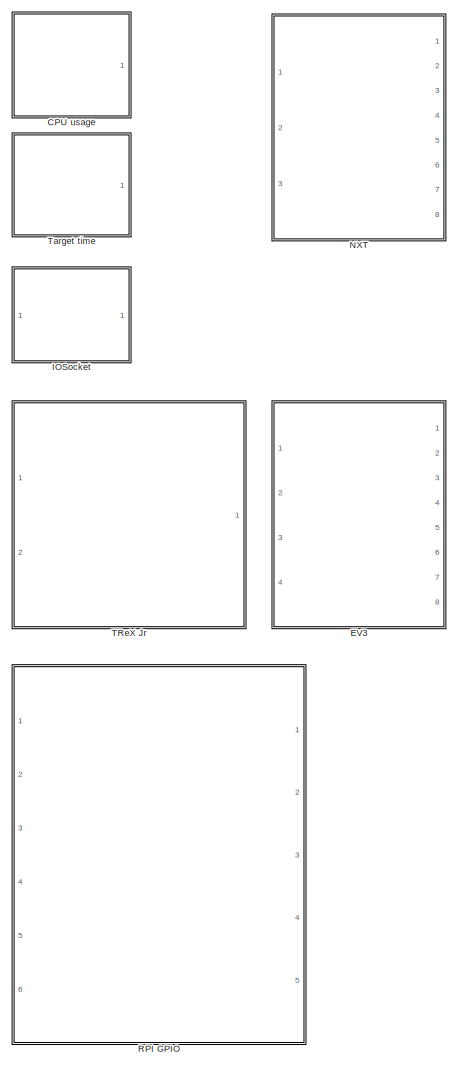
[diagram: root canvas - part 1/2, left side, full height]
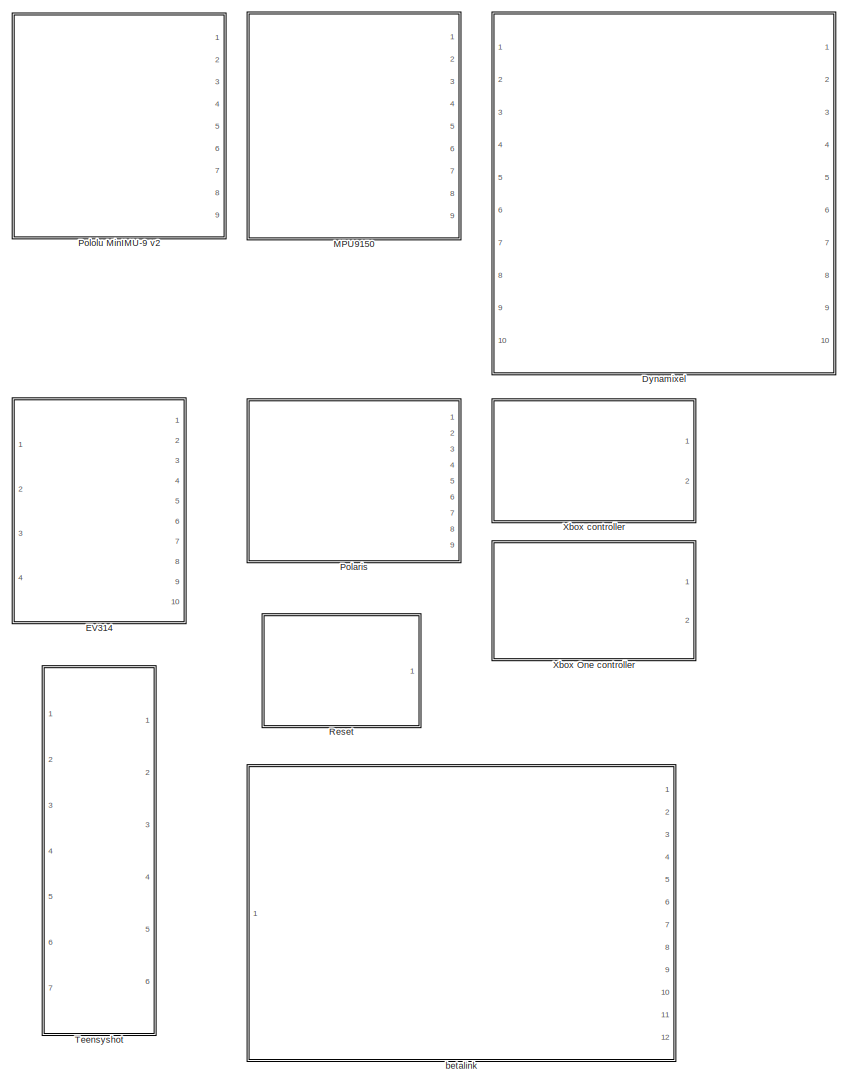
[diagram: root canvas - part 2/2, right side, full height]
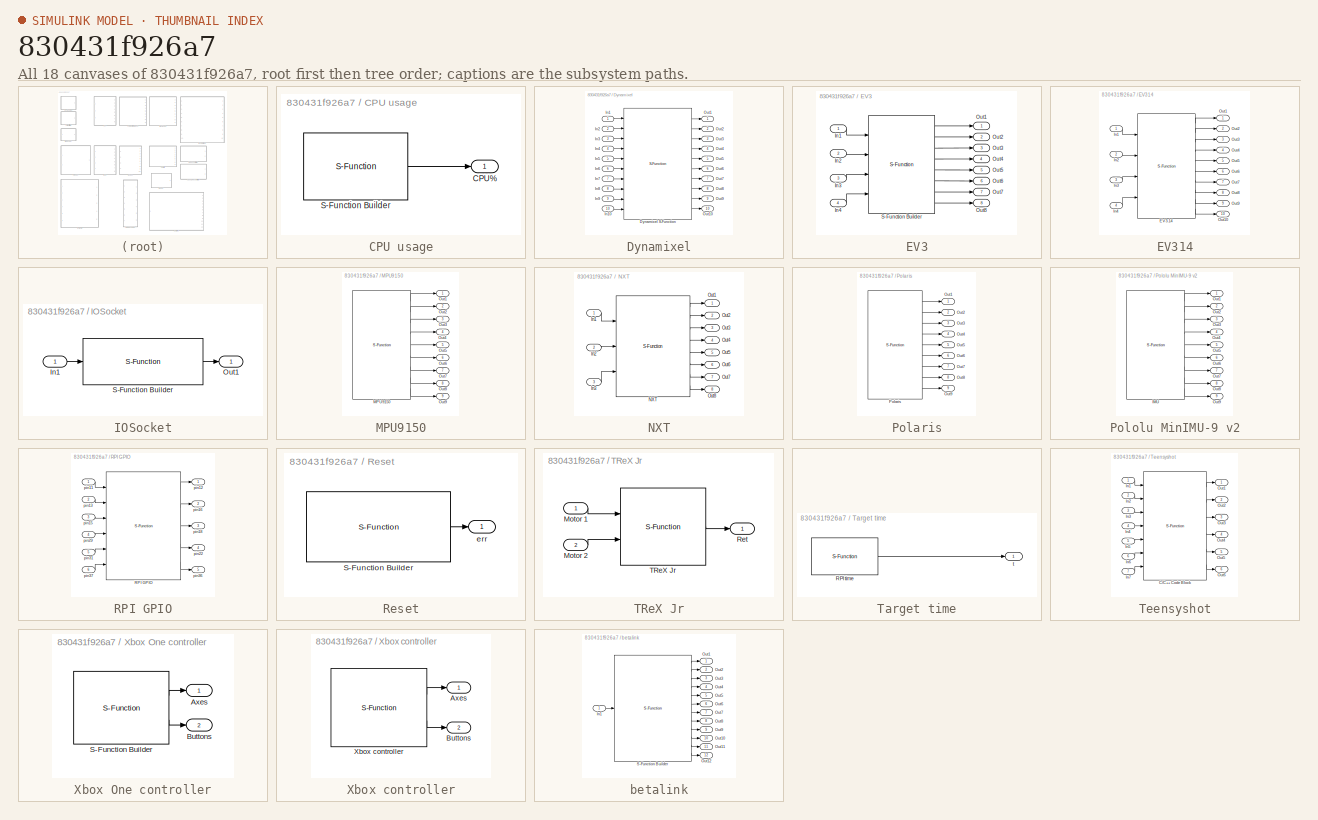
[diagram: thumbnail index - all 18 canvases of the model, root first then tree order]
MODEL slx_830431f926a7
KIND library
CONFIG AbsTol = auto
CONFIG EnableMultiTasking = on
CONFIG FixedStep = auto
CONFIG MaxStep = auto
CONFIG MinStep = auto
CONFIG RelTol = 1e-3
CONFIG SampleTimeConstraint = Unconstrained
CONFIG SolverName = ode45
CONFIG StartTime = 0.0
CONFIG StopTime = 10.0
BLOCK [SubSystem] CPU usage
  Ports = [0, 1]
  RequestExecContextInheritance = off
BLOCK [Outport] CPU usage/CPU%
  VectorParamsAs1DForOutWhenUnconnected = off
BLOCK [S-Function] CPU usage/S-Function Builder
  EnableBusSupport = off
  FunctionName = rpi_sfun_cpu
  InitFcn = try, set_param(gcb,'FunctionName','rpi_sfun_cpu'), end
  OpenFcn = sfunctionwizard(gcbh)
  Parameters = rpi_mask_Ts
  Ports = [0, 1]
  PreSaveFcn = try, set_param(gcb,'FunctionName','rpi_sfun_cpu'), end
  SFcnIsStateOwnerBlock = off
  SFunctionDeploymentMode = off
  SFunctionModules = rpi_sfun_cpu_wrapper
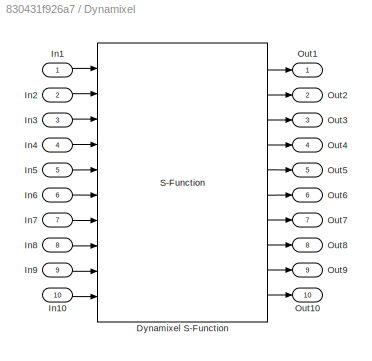
BLOCK [SubSystem] Dynamixel
  Ports = [10, 10]
  RequestExecContextInheritance = off
BLOCK [S-Function] Dynamixel/Dynamixel S-Function
  EnableBusSupport = off
  FunctionName = rpi_sfun_dxl
  InitFcn = try, set_param(gcb,'FunctionName','rpi_sfun_dxl'), end
  OpenFcn = sfunctionwizard(gcbh)
  Parameters = rpi_mask_Ts,uint8(rpi_mask_portname),uint32(rpi_mask_baudrate),uint8(rpi_mask_startid),uint8(rpi_mask_nbid),uint8(rpi_mask_proto),uint16(rpi_mask_write_addr),uint8(rpi_mask_write_length),uint16(rpi_mask_read_addr),uint8(rpi_mask_read_length),uint8(rpi_mask_read_sign),uint16(rpi_mask_init1_addr),uint8(rpi_mask_init1_length),rpi_mask_init1_data,uint16(rpi_mask_init2_addr),uint8(rpi_mask_init2_length...<+637ch>
  Ports = [10, 10]
  PreSaveFcn = try, set_param(gcb,'FunctionName','rpi_sfun_dxl'), end
  SFcnIsStateOwnerBlock = off
  SFunctionDeploymentMode = off
  SFunctionModules = rpi_sfun_dxl_wrapper
BLOCK [Inport] Dynamixel/In1
BLOCK [Inport] Dynamixel/In10
  Port = 10
BLOCK [Inport] Dynamixel/In2
  Port = 2
BLOCK [Inport] Dynamixel/In3
  Port = 3
BLOCK [Inport] Dynamixel/In4
  Port = 4
BLOCK [Inport] Dynamixel/In5
  Port = 5
BLOCK [Inport] Dynamixel/In6
  Port = 6
BLOCK [Inport] Dynamixel/In7
  Port = 7
BLOCK [Inport] Dynamixel/In8
  Port = 8
BLOCK [Inport] Dynamixel/In9
  Port = 9
BLOCK [Outport] Dynamixel/Out1
  VectorParamsAs1DForOutWhenUnconnected = off
BLOCK [Outport] Dynamixel/Out10
  Port = 10
  VectorParamsAs1DForOutWhenUnconnected = off
BLOCK [Outport] Dynamixel/Out2
  Port = 2
  VectorParamsAs1DForOutWhenUnconnected = off
BLOCK [Outport] Dynamixel/Out3
  Port = 3
  VectorParamsAs1DForOutWhenUnconnected = off
BLOCK [Outport] Dynamixel/Out4
  Port = 4
  VectorParamsAs1DForOutWhenUnconnected = off
BLOCK [Outport] Dynamixel/Out5
  Port = 5
  VectorParamsAs1DForOutWhenUnconnected = off
BLOCK [Outport] Dynamixel/Out6
  Port = 6
  VectorParamsAs1DForOutWhenUnconnected = off
BLOCK [Outport] Dynamixel/Out7
  Port = 7
  VectorParamsAs1DForOutWhenUnconnected = off
BLOCK [Outport] Dynamixel/Out8
  Port = 8
  VectorParamsAs1DForOutWhenUnconnected = off
BLOCK [Outport] Dynamixel/Out9
  Port = 9
  VectorParamsAs1DForOutWhenUnconnected = off
BLOCK [SubSystem] EV3
  Ports = [4, 8]
  RequestExecContextInheritance = off
BLOCK [Inport] EV3/In1
BLOCK [Inport] EV3/In2
  Port = 2
BLOCK [Inport] EV3/In3
  Port = 3
BLOCK [Inport] EV3/In4
  Port = 4
BLOCK [Outport] EV3/Out1
  VectorParamsAs1DForOutWhenUnconnected = off
BLOCK [Outport] EV3/Out2
  Port = 2
  VectorParamsAs1DForOutWhenUnconnected = off
BLOCK [Outport] EV3/Out3
  Port = 3
  VectorParamsAs1DForOutWhenUnconnected = off
BLOCK [Outport] EV3/Out4
  Port = 4
  VectorParamsAs1DForOutWhenUnconnected = off
BLOCK [Outport] EV3/Out5
  Port = 5
  VectorParamsAs1DForOutWhenUnconnected = off
BLOCK [Outport] EV3/Out6
  Port = 6
  VectorParamsAs1DForOutWhenUnconnected = off
BLOCK [Outport] EV3/Out7
  Port = 7
  VectorParamsAs1DForOutWhenUnconnected = off
BLOCK [Outport] EV3/Out8
  Port = 8
  VectorParamsAs1DForOutWhenUnconnected = off
BLOCK [S-Function] EV3/S-Function Builder
  EnableBusSupport = off
  FunctionName = rpi_sfun_ev3
  InitFcn = try, set_param(gcb,'FunctionName','rpi_sfun_ev3'), end
  OpenFcn = sfunctionwizard(gcbh)
  Parameters = rpi_mask_Ts
  Ports = [4, 8]
  PreSaveFcn = try, set_param(gcb,'FunctionName','rpi_sfun_ev3'), end
  SFcnIsStateOwnerBlock = off
  SFunctionDeploymentMode = off
  SFunctionModules = rpi_sfun_ev3_wrapper
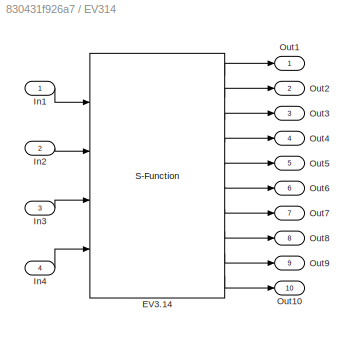
BLOCK [SubSystem] EV314
  Ports = [4, 10]
  RequestExecContextInheritance = off
BLOCK [S-Function] EV314/EV3.14
  EnableBusSupport = off
  FunctionName = rpi_sfun_ev314
  InitFcn = try, set_param(gcb,'FunctionName','rpi_sfun_ev314'), end
  OpenFcn = sfunctionwizard(gcbh)
  Parameters = rpi_mask_Ts,uint8(rpi_mask_ID)
  Ports = [4, 10]
  PreSaveFcn = try, set_param(gcb,'FunctionName','rpi_sfun_ev314'), end
  SFcnIsStateOwnerBlock = off
  SFunctionDeploymentMode = off
  SFunctionModules = rpi_sfun_ev314_wrapper
BLOCK [Inport] EV314/In1
BLOCK [Inport] EV314/In2
  Port = 2
BLOCK [Inport] EV314/In3
  Port = 3
BLOCK [Inport] EV314/In4
  Port = 4
BLOCK [Outport] EV314/Out1
  VectorParamsAs1DForOutWhenUnconnected = off
BLOCK [Outport] EV314/Out10
  Port = 10
  VectorParamsAs1DForOutWhenUnconnected = off
BLOCK [Outport] EV314/Out2
  Port = 2
  VectorParamsAs1DForOutWhenUnconnected = off
BLOCK [Outport] EV314/Out3
  Port = 3
  VectorParamsAs1DForOutWhenUnconnected = off
BLOCK [Outport] EV314/Out4
  Port = 4
  VectorParamsAs1DForOutWhenUnconnected = off
BLOCK [Outport] EV314/Out5
  Port = 5
  VectorParamsAs1DForOutWhenUnconnected = off
BLOCK [Outport] EV314/Out6
  Port = 6
  VectorParamsAs1DForOutWhenUnconnected = off
BLOCK [Outport] EV314/Out7
  Port = 7
  VectorParamsAs1DForOutWhenUnconnected = off
BLOCK [Outport] EV314/Out8
  Port = 8
  VectorParamsAs1DForOutWhenUnconnected = off
BLOCK [Outport] EV314/Out9
  Port = 9
  VectorParamsAs1DForOutWhenUnconnected = off
BLOCK [SubSystem] IOSocket
  Ports = [1, 1]
  RequestExecContextInheritance = off
BLOCK [Inport] IOSocket/In1
BLOCK [Outport] IOSocket/Out1
BLOCK [S-Function] IOSocket/S-Function Builder
  EnableBusSupport = off
  FunctionName = rpi_sfun_iosocket
  OpenFcn = sfunctionwizard(gcbh)
  Parameters = rpi_mask_Ts,uint8(rpi_mask_ip1),uint8(rpi_mask_ip2),uint8(rpi_mask_ip3),uint8(rpi_mask_ip4),uint32(rpi_mask_port)
  Ports = [1, 1]
  SFcnIsStateOwnerBlock = off
  SFunctionDeploymentMode = off
  SFunctionModules = rpi_sfun_iosocket_wrapper
BLOCK [SubSystem] MPU9150
  Ports = [0, 9]
  RequestExecContextInheritance = off
BLOCK [S-Function] MPU9150/MPU9150
  EnableBusSupport = off
  FunctionName = rpi_sfun_mpu9150
  InitFcn = try, set_param(gcb,'FunctionName','rpi_sfun_mpu9150'), end
  OpenFcn = sfunctionwizard(gcbh)
  Parameters = rpi_mask_Ts
  Ports = [0, 9]
  PreSaveFcn = try, set_param(gcb,'FunctionName','rpi_sfun_mpu9150'), end
  SFcnIsStateOwnerBlock = off
  SFunctionDeploymentMode = off
  SFunctionModules = rpi_sfun_mpu9150_wrapper
BLOCK [Outport] MPU9150/Out1
  VectorParamsAs1DForOutWhenUnconnected = off
BLOCK [Outport] MPU9150/Out2
  Port = 2
  VectorParamsAs1DForOutWhenUnconnected = off
BLOCK [Outport] MPU9150/Out3
  Port = 3
  VectorParamsAs1DForOutWhenUnconnected = off
BLOCK [Outport] MPU9150/Out4
  Port = 4
  VectorParamsAs1DForOutWhenUnconnected = off
BLOCK [Outport] MPU9150/Out5
  Port = 5
  VectorParamsAs1DForOutWhenUnconnected = off
BLOCK [Outport] MPU9150/Out6
  Port = 6
  VectorParamsAs1DForOutWhenUnconnected = off
BLOCK [Outport] MPU9150/Out7
  Port = 7
  VectorParamsAs1DForOutWhenUnconnected = off
BLOCK [Outport] MPU9150/Out8
  Port = 8
  VectorParamsAs1DForOutWhenUnconnected = off
BLOCK [Outport] MPU9150/Out9
  Port = 9
  VectorParamsAs1DForOutWhenUnconnected = off
BLOCK [SubSystem] NXT
  Ports = [3, 8]
  RequestExecContextInheritance = off
BLOCK [Inport] NXT/In1
BLOCK [Inport] NXT/In2
  Port = 2
BLOCK [Inport] NXT/In3
  Port = 3
BLOCK [S-Function] NXT/NXT
  EnableBusSupport = off
  FunctionName = rpi_sfun_nxt
  InitFcn = try, set_param(gcb,'FunctionName','rpi_sfun_nxt'), end
  OpenFcn = sfunctionwizard(gcbh)
  Parameters = rpi_mask_Ts,uint32(rpi_mask_id)
  Ports = [3, 8]
  PreSaveFcn = try, set_param(gcb,'FunctionName','rpi_sfun_nxt'), end
  SFcnIsStateOwnerBlock = off
  SFunctionDeploymentMode = off
  SFunctionModules = rpi_sfun_nxt_wrapper
BLOCK [Outport] NXT/Out1
  VectorParamsAs1DForOutWhenUnconnected = off
BLOCK [Outport] NXT/Out2
  Port = 2
  VectorParamsAs1DForOutWhenUnconnected = off
BLOCK [Outport] NXT/Out3
  Port = 3
  VectorParamsAs1DForOutWhenUnconnected = off
BLOCK [Outport] NXT/Out4
  Port = 4
  VectorParamsAs1DForOutWhenUnconnected = off
BLOCK [Outport] NXT/Out5
  Port = 5
  VectorParamsAs1DForOutWhenUnconnected = off
BLOCK [Outport] NXT/Out6
  Port = 6
  VectorParamsAs1DForOutWhenUnconnected = off
BLOCK [Outport] NXT/Out7
  Port = 7
  VectorParamsAs1DForOutWhenUnconnected = off
BLOCK [Outport] NXT/Out8
  Port = 8
  VectorParamsAs1DForOutWhenUnconnected = off
BLOCK [SubSystem] Polaris
  Ports = [0, 9]
  RequestExecContextInheritance = off
BLOCK [Outport] Polaris/Out1
  VectorParamsAs1DForOutWhenUnconnected = off
BLOCK [Outport] Polaris/Out2
  Port = 2
  VectorParamsAs1DForOutWhenUnconnected = off
BLOCK [Outport] Polaris/Out3
  Port = 3
  VectorParamsAs1DForOutWhenUnconnected = off
BLOCK [Outport] Polaris/Out4
  Port = 4
  VectorParamsAs1DForOutWhenUnconnected = off
BLOCK [Outport] Polaris/Out5
  Port = 5
  VectorParamsAs1DForOutWhenUnconnected = off
BLOCK [Outport] Polaris/Out6
  Port = 6
  VectorParamsAs1DForOutWhenUnconnected = off
BLOCK [Outport] Polaris/Out7
  Port = 7
  VectorParamsAs1DForOutWhenUnconnected = off
BLOCK [Outport] Polaris/Out8
  Port = 8
  VectorParamsAs1DForOutWhenUnconnected = off
BLOCK [Outport] Polaris/Out9
  Port = 9
  VectorParamsAs1DForOutWhenUnconnected = off
BLOCK [S-Function] Polaris/Polaris
  EnableBusSupport = off
  FunctionName = rpi_sfun_polaris
  InitFcn = try, set_param(gcb,'FunctionName','rpi_sfun_polaris'), end
  OpenFcn = sfunctionwizard(gcbh)
  Parameters = rpi_mask_Ts
  Ports = [0, 9]
  PreSaveFcn = try, set_param(gcb,'FunctionName','rpi_sfun_polaris'), end
  SFcnIsStateOwnerBlock = off
  SFunctionDeploymentMode = off
  SFunctionModules = rpi_sfun_polaris_wrapper
BLOCK [SubSystem] Pololu MinIMU-9 v2
  Ports = [0, 9]
  RequestExecContextInheritance = off
BLOCK [S-Function] Pololu MinIMU-9 v2/IMU
  EnableBusSupport = off
  FunctionName = rpi_sfun_imu
  InitFcn = try, set_param(gcb,'FunctionName','rpi_sfun_imu'), end
  OpenFcn = sfunctionwizard(gcbh)
  Parameters = rpi_mask_Ts
  Ports = [0, 9]
  PreSaveFcn = try, set_param(gcb,'FunctionName','rpi_sfun_imu'), end
  SFcnIsStateOwnerBlock = off
  SFunctionDeploymentMode = off
  SFunctionModules = rpi_sfun_imu_wrapper
BLOCK [Outport] Pololu MinIMU-9 v2/Out1
  VectorParamsAs1DForOutWhenUnconnected = off
BLOCK [Outport] Pololu MinIMU-9 v2/Out2
  Port = 2
  VectorParamsAs1DForOutWhenUnconnected = off
BLOCK [Outport] Pololu MinIMU-9 v2/Out3
  Port = 3
  VectorParamsAs1DForOutWhenUnconnected = off
BLOCK [Outport] Pololu MinIMU-9 v2/Out4
  Port = 4
  VectorParamsAs1DForOutWhenUnconnected = off
BLOCK [Outport] Pololu MinIMU-9 v2/Out5
  Port = 5
  VectorParamsAs1DForOutWhenUnconnected = off
BLOCK [Outport] Pololu MinIMU-9 v2/Out6
  Port = 6
  VectorParamsAs1DForOutWhenUnconnected = off
BLOCK [Outport] Pololu MinIMU-9 v2/Out7
  Port = 7
  VectorParamsAs1DForOutWhenUnconnected = off
BLOCK [Outport] Pololu MinIMU-9 v2/Out8
  Port = 8
  VectorParamsAs1DForOutWhenUnconnected = off
BLOCK [Outport] Pololu MinIMU-9 v2/Out9
  Port = 9
  VectorParamsAs1DForOutWhenUnconnected = off
BLOCK [SubSystem] RPI GPIO
  Ports = [6, 5]
  RequestExecContextInheritance = off
BLOCK [S-Function] RPI GPIO/RPI GPIO
  CopyFcn = set_param(gcbh,'LinkStatus','none')
  EnableBusSupport = off
  FunctionName = rpi_sfun_rgpio
  InitFcn = try, set_param(gcb,'FunctionName','rpi_sfun_rgpio'), end
  OpenFcn = sfunctionwizard(gcbh)
  Parameters = rpi_mask_Ts
  Ports = [6, 5]
  PreSaveFcn = try, set_param(gcb,'FunctionName','rpi_sfun_rgpio'), end
  SFcnIsStateOwnerBlock = off
  SFunctionDeploymentMode = off
  SFunctionModules = rpi_sfun_rgpio_wrapper
BLOCK [Inport] RPI GPIO/pin11
BLOCK [Outport] RPI GPIO/pin12
  VectorParamsAs1DForOutWhenUnconnected = off
BLOCK [Inport] RPI GPIO/pin13
  Port = 2
BLOCK [Inport] RPI GPIO/pin15
  Port = 3
BLOCK [Outport] RPI GPIO/pin16
  Port = 2
  VectorParamsAs1DForOutWhenUnconnected = off
BLOCK [Outport] RPI GPIO/pin18
  Port = 3
  VectorParamsAs1DForOutWhenUnconnected = off
BLOCK [Outport] RPI GPIO/pin22
  Port = 4
  VectorParamsAs1DForOutWhenUnconnected = off
BLOCK [Inport] RPI GPIO/pin29
  Port = 4
BLOCK [Inport] RPI GPIO/pin31
  Port = 5
BLOCK [Outport] RPI GPIO/pin36
  Port = 5
  VectorParamsAs1DForOutWhenUnconnected = off
BLOCK [Inport] RPI GPIO/pin37
  Port = 6
BLOCK [SubSystem] Reset
  Ports = [0, 1]
  Priority = 100
  RequestExecContextInheritance = off
BLOCK [S-Function] Reset/S-Function Builder
  EnableBusSupport = off
  FunctionName = rpi_sfun_resetusb
  InitFcn = try, set_param(gcb,'FunctionName','rpi_sfun_resetusb'), end
  OpenFcn = sfunctionwizard(gcbh)
  Parameters = rpi_mask_Ts
  Ports = [0, 1]
  PreSaveFcn = try, set_param(gcb,'FunctionName','rpi_sfun_resetusb'), end
  SFcnIsStateOwnerBlock = off
  SFunctionDeploymentMode = off
  SFunctionModules = rpi_sfun_resetusb_wrapper
BLOCK [Outport] Reset/err
  VectorParamsAs1DForOutWhenUnconnected = off
BLOCK [SubSystem] TReX Jr
  Ports = [2, 1]
  RequestExecContextInheritance = off
BLOCK [Inport] TReX Jr/Motor 1
BLOCK [Inport] TReX Jr/Motor 2
  Port = 2
BLOCK [Outport] TReX Jr/Ret
  VectorParamsAs1DForOutWhenUnconnected = off
BLOCK [S-Function] TReX Jr/TReX Jr
  CopyFcn = set_param(gcbh,'LinkStatus','none')
  EnableBusSupport = off
  FunctionName = rpi_sfun_trex
  InitFcn = try, set_param(gcb,'FunctionName','rpi_sfun_trex'), end
  OpenFcn = sfunctionwizard(gcbh)
  Parameters = int8(rpi_mask_trex_port),uint8(rpi_mask_trex_id),rpi_mask_Ts
  Ports = [2, 1]
  PreSaveFcn = try, set_param(gcb,'FunctionName','rpi_sfun_trex'), end
  SFcnIsStateOwnerBlock = off
  SFunctionDeploymentMode = off
  SFunctionModules = rpi_sfun_trex_wrapper
BLOCK [SubSystem] Target time
  Ports = [0, 1]
  RequestExecContextInheritance = off
BLOCK [S-Function] Target time/RPI time
  EnableBusSupport = off
  FunctionName = rpi_sfun_time
  InitFcn = try, set_param(gcb,'FunctionName','rpi_sfun_time'), end
  OpenFcn = sfunctionwizard(gcbh)
  Parameters = rpi_mask_Ts
  Ports = [0, 1]
  PreSaveFcn = try, set_param(gcb,'FunctionName','rpi_sfun_time'), end
  SFcnIsStateOwnerBlock = off
  SFunctionDeploymentMode = off
  SFunctionModules = rpi_sfun_time_wrapper
BLOCK [Outport] Target time/t
  VectorParamsAs1DForOutWhenUnconnected = off
BLOCK [SubSystem] Teensyshot
  Ports = [7, 6]
  RequestExecContextInheritance = off
BLOCK [S-Function] Teensyshot/C//C++ Code Block
  EnableBusSupport = off
  FunctionName = rpi_sfun_teensyshot
  InitFcn = try, set_param(gcb,'FunctionName','rpi_sfun_teensyshot'), end
  OpenFcn = sfunctionwizard(gcbh)
  Parameters = rpi_mask_Ts,rpi_mask_P1,rpi_mask_I1,rpi_mask_D1,rpi_mask_f1,rpi_mask_P2,rpi_mask_I2,rpi_mask_D2,rpi_mask_f2,rpi_mask_P3,rpi_mask_I3,rpi_mask_D3,rpi_mask_f3,rpi_mask_P4,rpi_mask_I4,rpi_mask_D4,rpi_mask_f4,rpi_mask_P5,rpi_mask_I5,rpi_mask_D5,rpi_mask_f5,rpi_mask_P6,rpi_mask_I6,rpi_mask_D6,rpi_mask_f6,uint32(rpi_mask_port)
  Ports = [7, 6]
  PreSaveFcn = try, set_param(gcb,'FunctionName','rpi_sfun_teensyshot'), end
  SFcnIsStateOwnerBlock = off
  SFunctionDeploymentMode = off
  SFunctionModules = rpi_sfun_teensyshot_wrapper
BLOCK [Inport] Teensyshot/In1
BLOCK [Inport] Teensyshot/In2
  Port = 2
BLOCK [Inport] Teensyshot/In3
  Port = 3
BLOCK [Inport] Teensyshot/In4
  Port = 4
BLOCK [Inport] Teensyshot/In5
  Port = 5
BLOCK [Inport] Teensyshot/In6
  Port = 6
BLOCK [Inport] Teensyshot/In7
  Port = 7
BLOCK [Outport] Teensyshot/Out1
  VectorParamsAs1DForOutWhenUnconnected = off
BLOCK [Outport] Teensyshot/Out2
  Port = 2
  VectorParamsAs1DForOutWhenUnconnected = off
BLOCK [Outport] Teensyshot/Out3
  Port = 3
  VectorParamsAs1DForOutWhenUnconnected = off
BLOCK [Outport] Teensyshot/Out4
  Port = 4
  VectorParamsAs1DForOutWhenUnconnected = off
BLOCK [Outport] Teensyshot/Out5
  Port = 5
  VectorParamsAs1DForOutWhenUnconnected = off
BLOCK [Outport] Teensyshot/Out6
  Port = 6
  VectorParamsAs1DForOutWhenUnconnected = off
BLOCK [SubSystem] Xbox One controller
  Ports = [0, 2]
  RequestExecContextInheritance = off
BLOCK [Outport] Xbox One controller/Axes
  VectorParamsAs1DForOutWhenUnconnected = off
BLOCK [Outport] Xbox One controller/Buttons
  Port = 2
  VectorParamsAs1DForOutWhenUnconnected = off
BLOCK [S-Function] Xbox One controller/S-Function Builder
  EnableBusSupport = off
  FunctionName = rpi_sfun_xboxone
  InitFcn = try, set_param(gcb,'FunctionName','rpi_sfun_xboxone'), end
  OpenFcn = sfunctionwizard(gcbh)
  Parameters = rpi_mask_ID,rpi_mask_Ts
  Ports = [0, 2]
  PreSaveFcn = try, set_param(gcb,'FunctionName','rpi_sfun_xboxone'), end
  SFcnIsStateOwnerBlock = off
  SFunctionDeploymentMode = off
  SFunctionModules = rpi_sfun_xboxone_wrapper
BLOCK [SubSystem] Xbox controller
  Ports = [0, 2]
  RequestExecContextInheritance = off
BLOCK [Outport] Xbox controller/Axes
  VectorParamsAs1DForOutWhenUnconnected = off
BLOCK [Outport] Xbox controller/Buttons
  Port = 2
  VectorParamsAs1DForOutWhenUnconnected = off
BLOCK [S-Function] Xbox controller/Xbox controller
  EnableBusSupport = off
  FunctionName = rpi_sfun_js
  InitFcn = try, set_param(gcb,'FunctionName','rpi_sfun_js'), end
  OpenFcn = sfunctionwizard(gcbh)
  Parameters = rpi_mask_ID,rpi_mask_Ts
  Ports = [0, 2]
  PreSaveFcn = try, set_param(gcb,'FunctionName','rpi_sfun_js'), end
  SFcnIsStateOwnerBlock = off
  SFunctionDeploymentMode = off
  SFunctionModules = rpi_sfun_js_wrapper
BLOCK [SubSystem] betalink
  Ports = [1, 12]
  RequestExecContextInheritance = off
BLOCK [Inport] betalink/In1
BLOCK [Outport] betalink/Out1
BLOCK [Outport] betalink/Out10
  Port = 10
BLOCK [Outport] betalink/Out11
  Port = 11
BLOCK [Outport] betalink/Out12
  Port = 12
BLOCK [Outport] betalink/Out2
  Port = 2
BLOCK [Outport] betalink/Out3
  Port = 3
BLOCK [Outport] betalink/Out4
  Port = 4
BLOCK [Outport] betalink/Out5
  Port = 5
BLOCK [Outport] betalink/Out6
  Port = 6
BLOCK [Outport] betalink/Out7
  Port = 7
BLOCK [Outport] betalink/Out8
  Port = 8
BLOCK [Outport] betalink/Out9
  Port = 9
BLOCK [S-Function] betalink/S-Function Builder
  EnableBusSupport = off
  FunctionName = rpi_sfun_betalink
  InitFcn = try, set_param(gcb,'FunctionName','rpi_sfun_betalink'), end
  OpenFcn = sfunctionwizard(gcbh)
  Parameters = rpi_mask_Ts,rpi_mask_usb_serial_number
  Ports = [1, 12]
  PreSaveFcn = try, set_param(gcb,'FunctionName','rpi_sfun_betalink'), end
  SFcnIsStateOwnerBlock = off
  SFunctionDeploymentMode = off
  SFunctionModules = rpi_sfun_betalink_wrapper
LINE CPU usage/S-Function Builder:1 -> CPU usage/CPU%:1
LINE Dynamixel/Dynamixel S-Function:1 -> Dynamixel/Out1:1
LINE Dynamixel/Dynamixel S-Function:10 -> Dynamixel/Out10:1
LINE Dynamixel/Dynamixel S-Function:2 -> Dynamixel/Out2:1
LINE Dynamixel/Dynamixel S-Function:3 -> Dynamixel/Out3:1
LINE Dynamixel/Dynamixel S-Function:4 -> Dynamixel/Out4:1
LINE Dynamixel/Dynamixel S-Function:5 -> Dynamixel/Out5:1
LINE Dynamixel/Dynamixel S-Function:6 -> Dynamixel/Out6:1
LINE Dynamixel/Dynamixel S-Function:7 -> Dynamixel/Out7:1
LINE Dynamixel/Dynamixel S-Function:8 -> Dynamixel/Out8:1
LINE Dynamixel/Dynamixel S-Function:9 -> Dynamixel/Out9:1
LINE Dynamixel/In10:1 -> Dynamixel/Dynamixel S-Function:10
LINE Dynamixel/In1:1 -> Dynamixel/Dynamixel S-Function:1
LINE Dynamixel/In2:1 -> Dynamixel/Dynamixel S-Function:2
LINE Dynamixel/In3:1 -> Dynamixel/Dynamixel S-Function:3
LINE Dynamixel/In4:1 -> Dynamixel/Dynamixel S-Function:4
LINE Dynamixel/In5:1 -> Dynamixel/Dynamixel S-Function:5
LINE Dynamixel/In6:1 -> Dynamixel/Dynamixel S-Function:6
LINE Dynamixel/In7:1 -> Dynamixel/Dynamixel S-Function:7
LINE Dynamixel/In8:1 -> Dynamixel/Dynamixel S-Function:8
LINE Dynamixel/In9:1 -> Dynamixel/Dynamixel S-Function:9
LINE EV3/In1:1 -> EV3/S-Function Builder:1
LINE EV3/In2:1 -> EV3/S-Function Builder:2
LINE EV3/In3:1 -> EV3/S-Function Builder:3
LINE EV3/In4:1 -> EV3/S-Function Builder:4
LINE EV3/S-Function Builder:1 -> EV3/Out1:1
LINE EV3/S-Function Builder:2 -> EV3/Out2:1
LINE EV3/S-Function Builder:3 -> EV3/Out3:1
LINE EV3/S-Function Builder:4 -> EV3/Out4:1
LINE EV3/S-Function Builder:5 -> EV3/Out5:1
LINE EV3/S-Function Builder:6 -> EV3/Out6:1
LINE EV3/S-Function Builder:7 -> EV3/Out7:1
LINE EV3/S-Function Builder:8 -> EV3/Out8:1
LINE EV314/EV3.14:1 -> EV314/Out1:1
LINE EV314/EV3.14:10 -> EV314/Out10:1
LINE EV314/EV3.14:2 -> EV314/Out2:1
LINE EV314/EV3.14:3 -> EV314/Out3:1
LINE EV314/EV3.14:4 -> EV314/Out4:1
LINE EV314/EV3.14:5 -> EV314/Out5:1
LINE EV314/EV3.14:6 -> EV314/Out6:1
LINE EV314/EV3.14:7 -> EV314/Out7:1
LINE EV314/EV3.14:8 -> EV314/Out8:1
LINE EV314/EV3.14:9 -> EV314/Out9:1
LINE EV314/In1:1 -> EV314/EV3.14:1
LINE EV314/In2:1 -> EV314/EV3.14:2
LINE EV314/In3:1 -> EV314/EV3.14:3
LINE EV314/In4:1 -> EV314/EV3.14:4
LINE IOSocket/In1:1 -> IOSocket/S-Function Builder:1
LINE IOSocket/S-Function Builder:1 -> IOSocket/Out1:1
LINE MPU9150/MPU9150:1 -> MPU9150/Out1:1
LINE MPU9150/MPU9150:2 -> MPU9150/Out2:1
LINE MPU9150/MPU9150:3 -> MPU9150/Out3:1
LINE MPU9150/MPU9150:4 -> MPU9150/Out4:1
LINE MPU9150/MPU9150:5 -> MPU9150/Out5:1
LINE MPU9150/MPU9150:6 -> MPU9150/Out6:1
LINE MPU9150/MPU9150:7 -> MPU9150/Out7:1
LINE MPU9150/MPU9150:8 -> MPU9150/Out8:1
LINE MPU9150/MPU9150:9 -> MPU9150/Out9:1
LINE NXT/In1:1 -> NXT/NXT:1
LINE NXT/In2:1 -> NXT/NXT:2
LINE NXT/In3:1 -> NXT/NXT:3
LINE NXT/NXT:1 -> NXT/Out1:1
LINE NXT/NXT:2 -> NXT/Out2:1
LINE NXT/NXT:3 -> NXT/Out3:1
LINE NXT/NXT:4 -> NXT/Out4:1
LINE NXT/NXT:5 -> NXT/Out5:1
LINE NXT/NXT:6 -> NXT/Out6:1
LINE NXT/NXT:7 -> NXT/Out7:1
LINE NXT/NXT:8 -> NXT/Out8:1
LINE Polaris/Polaris:1 -> Polaris/Out1:1
LINE Polaris/Polaris:2 -> Polaris/Out2:1
LINE Polaris/Polaris:3 -> Polaris/Out3:1
LINE Polaris/Polaris:4 -> Polaris/Out4:1
LINE Polaris/Polaris:5 -> Polaris/Out5:1
LINE Polaris/Polaris:6 -> Polaris/Out6:1
LINE Polaris/Polaris:7 -> Polaris/Out7:1
LINE Polaris/Polaris:8 -> Polaris/Out8:1
LINE Polaris/Polaris:9 -> Polaris/Out9:1
LINE Pololu MinIMU-9 v2/IMU:1 -> Pololu MinIMU-9 v2/Out1:1
LINE Pololu MinIMU-9 v2/IMU:2 -> Pololu MinIMU-9 v2/Out2:1
LINE Pololu MinIMU-9 v2/IMU:3 -> Pololu MinIMU-9 v2/Out3:1
LINE Pololu MinIMU-9 v2/IMU:4 -> Pololu MinIMU-9 v2/Out4:1
LINE Pololu MinIMU-9 v2/IMU:5 -> Pololu MinIMU-9 v2/Out5:1
LINE Pololu MinIMU-9 v2/IMU:6 -> Pololu MinIMU-9 v2/Out6:1
LINE Pololu MinIMU-9 v2/IMU:7 -> Pololu MinIMU-9 v2/Out7:1
LINE Pololu MinIMU-9 v2/IMU:8 -> Pololu MinIMU-9 v2/Out8:1
LINE Pololu MinIMU-9 v2/IMU:9 -> Pololu MinIMU-9 v2/Out9:1
LINE RPI GPIO/RPI GPIO:1 -> RPI GPIO/pin12:1
LINE RPI GPIO/RPI GPIO:2 -> RPI GPIO/pin16:1
LINE RPI GPIO/RPI GPIO:3 -> RPI GPIO/pin18:1
LINE RPI GPIO/RPI GPIO:4 -> RPI GPIO/pin22:1
LINE RPI GPIO/RPI GPIO:5 -> RPI GPIO/pin36:1
LINE RPI GPIO/pin11:1 -> RPI GPIO/RPI GPIO:1
LINE RPI GPIO/pin13:1 -> RPI GPIO/RPI GPIO:2
LINE RPI GPIO/pin15:1 -> RPI GPIO/RPI GPIO:3
LINE RPI GPIO/pin29:1 -> RPI GPIO/RPI GPIO:4
LINE RPI GPIO/pin31:1 -> RPI GPIO/RPI GPIO:5
LINE RPI GPIO/pin37:1 -> RPI GPIO/RPI GPIO:6
LINE Reset/S-Function Builder:1 -> Reset/err:1
LINE TReX Jr/Motor 1:1 -> TReX Jr/TReX Jr:1
LINE TReX Jr/Motor 2:1 -> TReX Jr/TReX Jr:2
LINE TReX Jr/TReX Jr:1 -> TReX Jr/Ret:1
LINE Target time/RPI time:1 -> Target time/t:1
LINE Teensyshot/C//C++ Code Block:1 -> Teensyshot/Out1:1
LINE Teensyshot/C//C++ Code Block:2 -> Teensyshot/Out2:1
LINE Teensyshot/C//C++ Code Block:3 -> Teensyshot/Out3:1
LINE Teensyshot/C//C++ Code Block:4 -> Teensyshot/Out4:1
LINE Teensyshot/C//C++ Code Block:5 -> Teensyshot/Out5:1
LINE Teensyshot/C//C++ Code Block:6 -> Teensyshot/Out6:1
LINE Teensyshot/In1:1 -> Teensyshot/C//C++ Code Block:1
LINE Teensyshot/In2:1 -> Teensyshot/C//C++ Code Block:2
LINE Teensyshot/In3:1 -> Teensyshot/C//C++ Code Block:3
LINE Teensyshot/In4:1 -> Teensyshot/C//C++ Code Block:4
LINE Teensyshot/In5:1 -> Teensyshot/C//C++ Code Block:5
LINE Teensyshot/In6:1 -> Teensyshot/C//C++ Code Block:6
LINE Teensyshot/In7:1 -> Teensyshot/C//C++ Code Block:7
LINE Xbox One controller/S-Function Builder:1 -> Xbox One controller/Axes:1
LINE Xbox One controller/S-Function Builder:2 -> Xbox One controller/Buttons:1
LINE Xbox controller/Xbox controller:1 -> Xbox controller/Axes:1
LINE Xbox controller/Xbox controller:2 -> Xbox controller/Buttons:1
LINE betalink/In1:1 -> betalink/S-Function Builder:1
LINE betalink/S-Function Builder:1 -> betalink/Out1:1
LINE betalink/S-Function Builder:10 -> betalink/Out10:1
LINE betalink/S-Function Builder:11 -> betalink/Out11:1
LINE betalink/S-Function Builder:12 -> betalink/Out12:1
LINE betalink/S-Function Builder:2 -> betalink/Out2:1
LINE betalink/S-Function Builder:3 -> betalink/Out3:1
LINE betalink/S-Function Builder:4 -> betalink/Out4:1
LINE betalink/S-Function Builder:5 -> betalink/Out5:1
LINE betalink/S-Function Builder:6 -> betalink/Out6:1
LINE betalink/S-Function Builder:7 -> betalink/Out7:1
LINE betalink/S-Function Builder:8 -> betalink/Out8:1
LINE betalink/S-Function Builder:9 -> betalink/Out9:1
